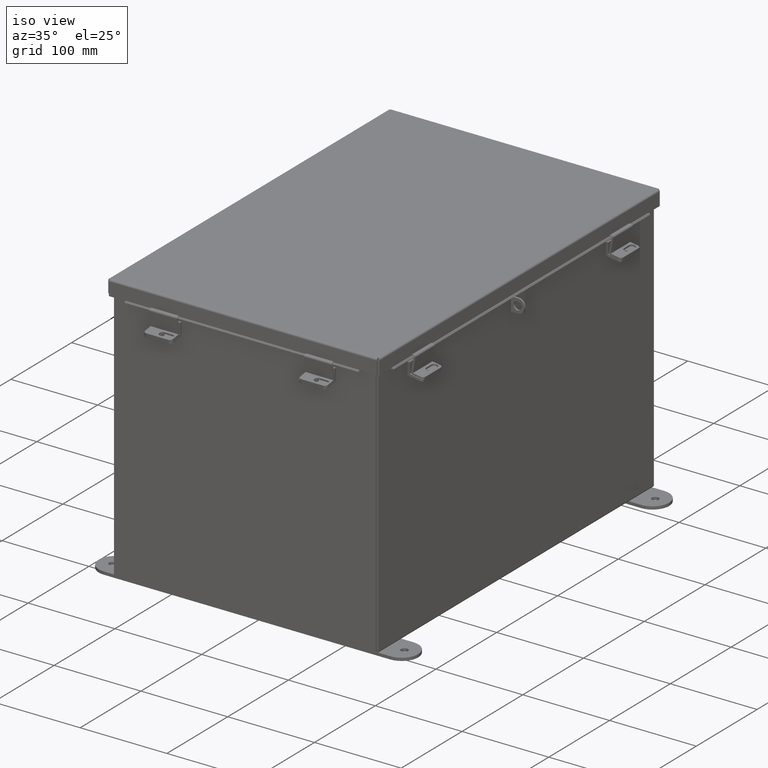
[diagram: clean part render]
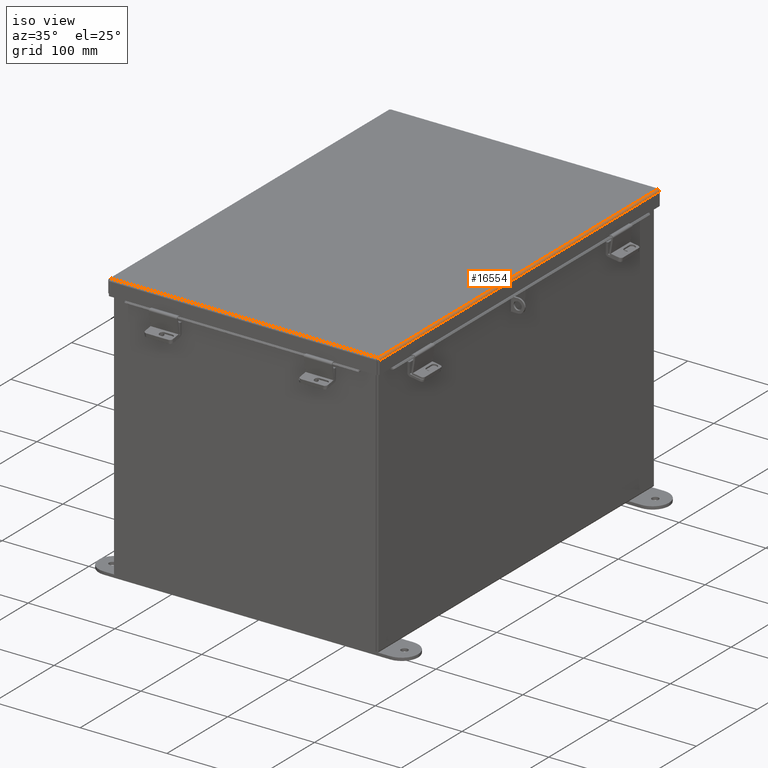
[diagram: same view with one face highlighted and labeled with its STEP entity id]
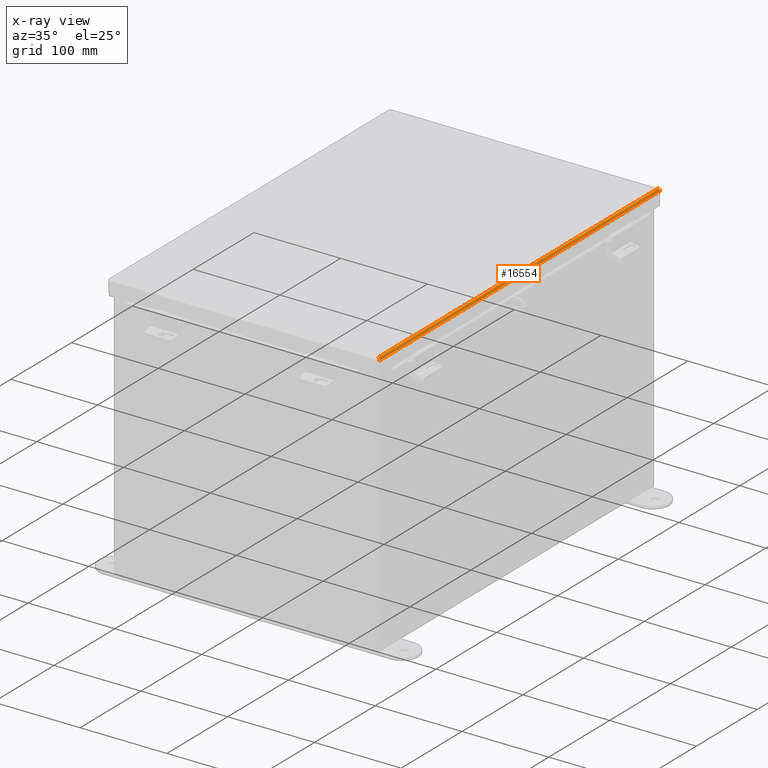
[diagram: x-ray of the same camera — body ghosted, the highlighted face saturated]
A machine part, iso view. The second image highlights one B-rep face of the part: STEP entity #16554.
The next image is the same camera in x-ray: the body ghosted, the highlighted face saturated — about 0% of this face is hidden behind the body in this view.
In plain terms, the highlighted cylindrical surface (edge-blend (fillet) strip) has radius 2.2276 mm, axis along (-0, -1, -0).
Its self-contained STEP definition (entity closure, byte-faithful):
#85 = CARTESIAN_POINT ( 'NONE',  ( -6.080029903154992300, 9.069044077682320900, -0.07470000000000069600 ) ) ;
#120 = CARTESIAN_POINT ( 'NONE',  ( -6.122445747341799900, 9.071020388411700000, -0.05713078207832147200 ) ) ;
#1228 = CARTESIAN_POINT ( 'NONE',  ( -6.068549999999987700, 9.068549999999977000, -0.07470000000000015500 ) ) ;
#1427 = EDGE_CURVE ( 'NONE', #6515, #19074, #13624, .T. ) ;
#1853 = CARTESIAN_POINT ( 'NONE',  ( -6.112717384578528100, -9.070526310729400500, -0.06363106625867040500 ) ) ;
#1957 = CARTESIAN_POINT ( 'NONE',  ( -6.145181066258668800, -9.072502621458774300, -0.03116738457852937300 ) ) ;
#1994 = DIRECTION ( 'NONE',  ( -4.594728677537087400E-029, 1.000000000000000000, 5.967176504932513700E-017 ) ) ;
#2285 = B_SPLINE_CURVE_WITH_KNOTS ( 'NONE', 3,
 ( #17232, #11428, #2830, #1957, #14781, #4500, #1853, #6220, #7126, #11906 ),
 .UNSPECIFIED., .F., .F.,
 ( 4, 2, 2, 2, 4 ),
 ( 0.0000000000000000000, 0.2500000000000000000, 0.5000000000000000000, 0.7500000000000000000, 1.000000000000000000 ),
 .UNSPECIFIED. ) ;
#2816 = FACE_OUTER_BOUND ( 'NONE', #7208, .T. ) ;
#2830 = CARTESIAN_POINT ( 'NONE',  ( -6.153967403743811500, -9.073490776823467400, -0.009955289458310093800 ) ) ;
#2868 = CARTESIAN_POINT ( 'NONE',  ( -6.156250000000000000, 9.156249999999978700, 0.01300000000000010700 ) ) ;
#3918 = B_SPLINE_CURVE_WITH_KNOTS ( 'NONE', 3,
 ( #1228, #85, #6738, #7229, #120, #9789, #12324, #12270, #5173, #7909 ),
 .UNSPECIFIED., .F., .F.,
 ( 4, 2, 2, 2, 4 ),
 ( 0.0000000000000000000, 0.2500000000000000000, 0.5000000000000000000, 0.7500000000000000000, 1.000000000000000000 ),
 .UNSPECIFIED. ) ;
#4440 = EDGE_CURVE ( 'NONE', #6515, #15689, #2285, .T. ) ;
#4500 = CARTESIAN_POINT ( 'NONE',  ( -6.122445747341799000, -9.071020388411744400, -0.05713078207832227700 ) ) ;
#4625 = LINE ( 'NONE', #16797, #15910 ) ;
#5093 = CARTESIAN_POINT ( 'NONE',  ( -6.156250000000000000, 9.074478932188112500, 0.01300000000000010700 ) ) ;
#5173 = CARTESIAN_POINT ( 'NONE',  ( -6.156250000000000000, 9.073984854505768600, 0.001520096845005166600 ) ) ;
#5546 = EDGE_CURVE ( 'NONE', #18698, #19074, #3918, .T. ) ;
#6220 = CARTESIAN_POINT ( 'NONE',  ( -6.091505289458309500, -9.069538155364711000, -0.07241740374381340500 ) ) ;
#6403 = AXIS2_PLACEMENT_3D ( 'NONE', #7608, #10006, #17336 ) ;
#6515 = VERTEX_POINT ( 'NONE', #13613 ) ;
#6738 = CARTESIAN_POINT ( 'NONE',  ( -6.091505289458309500, 9.069538155364666600, -0.07241740374381203100 ) ) ;
#6786 = ORIENTED_EDGE ( 'NONE', *, *, #1427, .T. ) ;
#7126 = CARTESIAN_POINT ( 'NONE',  ( -6.080029903154993100, -9.069044077682365300, -0.07470000000000218100 ) ) ;
#7178 = EDGE_CURVE ( 'NONE', #15689, #18698, #4625, .T. ) ;
#7208 = EDGE_LOOP ( 'NONE', ( #9860, #12601, #6786, #17647 ) ) ;
#7229 = CARTESIAN_POINT ( 'NONE',  ( -6.112717384578525400, 9.070526310729350800, -0.06363106625866935000 ) ) ;
#7565 = CARTESIAN_POINT ( 'NONE',  ( -6.068549999999987700, 9.068549999999977000, -0.07470000000000015500 ) ) ;
#7608 = CARTESIAN_POINT ( 'NONE',  ( -6.068550000000000100, -9.074478932188156900, 0.01299999999999792100 ) ) ;
#7909 = CARTESIAN_POINT ( 'NONE',  ( -6.156250000000000000, 9.074478932188112500, 0.01300000000000010700 ) ) ;
#9789 = CARTESIAN_POINT ( 'NONE',  ( -6.138680782078317600, 9.072008543776391300, -0.04089574734180145100 ) ) ;
#9860 = ORIENTED_EDGE ( 'NONE', *, *, #7178, .F. ) ;
#10006 = DIRECTION ( 'NONE',  ( 4.557863265301595500E-029, -1.000000000000000000, -8.208677865577979100E-017 ) ) ;
#10124 = CYLINDRICAL_SURFACE ( 'NONE', #6403, 0.08770000000000026400 ) ;
#10221 = CARTESIAN_POINT ( 'NONE',  ( -6.068549999999987700, -9.068550000000021400, -0.07470000000000234800 ) ) ;
#11428 = CARTESIAN_POINT ( 'NONE',  ( -6.156249999999999100, -9.073984854505811300, 0.001520096845006200900 ) ) ;
#11906 = CARTESIAN_POINT ( 'NONE',  ( -6.068549999999987700, -9.068550000000021400, -0.07470000000000234800 ) ) ;
#12270 = CARTESIAN_POINT ( 'NONE',  ( -6.153967403743811500, 9.073490776823423000, -0.009955289458310831100 ) ) ;
#12324 = CARTESIAN_POINT ( 'NONE',  ( -6.145181066258667900, 9.072502621458735200, -0.03116738457852948400 ) ) ;
#12601 = ORIENTED_EDGE ( 'NONE', *, *, #4440, .F. ) ;
#13613 = CARTESIAN_POINT ( 'NONE',  ( -6.156250000000000000, -9.074478932188156900, 0.01299999999999792100 ) ) ;
#13624 = LINE ( 'NONE', #2868, #17108 ) ;
#14781 = CARTESIAN_POINT ( 'NONE',  ( -6.138680782078321100, -9.072008543776434000, -0.04089574734180167300 ) ) ;
#15415 = DIRECTION ( 'NONE',  ( -4.557863265301595500E-029, 1.000000000000000000, 8.208677865577979100E-017 ) ) ;
#15689 = VERTEX_POINT ( 'NONE', #10221 ) ;
#15910 = VECTOR ( 'NONE', #15415, 39.37007874015748100 ) ;
#16554 = ADVANCED_FACE ( 'NONE', ( #2816 ), #10124, .T. ) ;
#16797 = CARTESIAN_POINT ( 'NONE',  ( -6.068549999999987700, -9.074478932188156900, -0.07470000000000234800 ) ) ;
#17108 = VECTOR ( 'NONE', #1994, 39.37007874015748100 ) ;
#17232 = CARTESIAN_POINT ( 'NONE',  ( -6.156250000000000000, -9.074478932188156900, 0.01299999999999792100 ) ) ;
#17336 = DIRECTION ( 'NONE',  ( -1.000000000000000000, 0.0000000000000000000, -3.577373637655407700E-015 ) ) ;
#17647 = ORIENTED_EDGE ( 'NONE', *, *, #5546, .F. ) ;
#18698 = VERTEX_POINT ( 'NONE', #7565 ) ;
#19074 = VERTEX_POINT ( 'NONE', #5093 ) ;